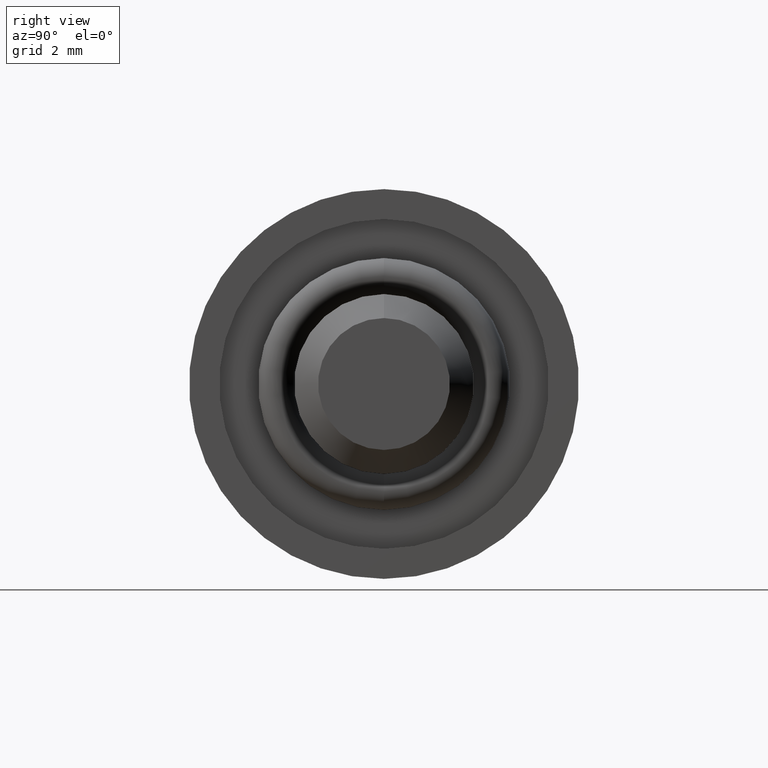
[diagram: clean part render]
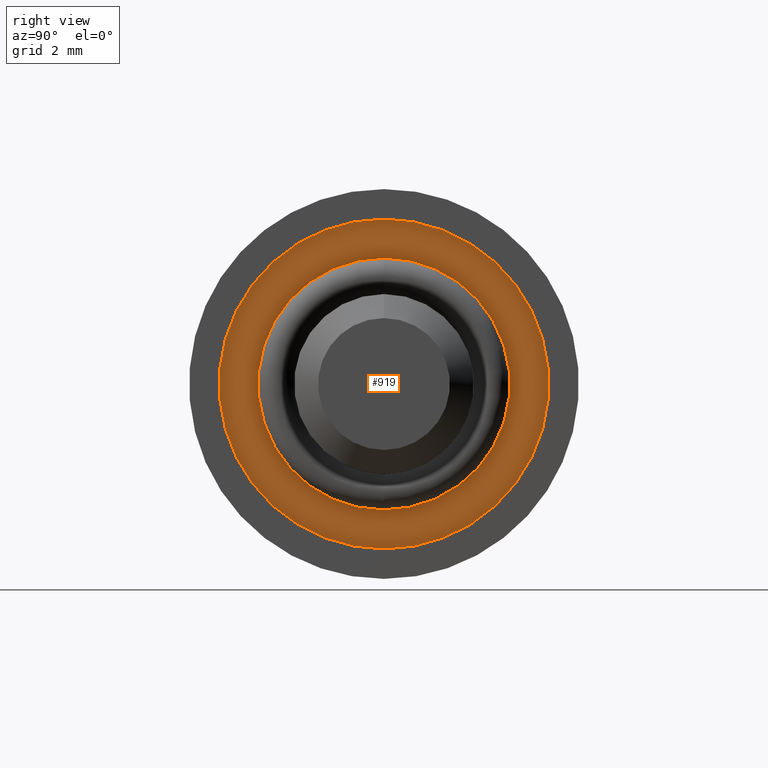
[diagram: same view with one face highlighted and labeled with its STEP entity id]
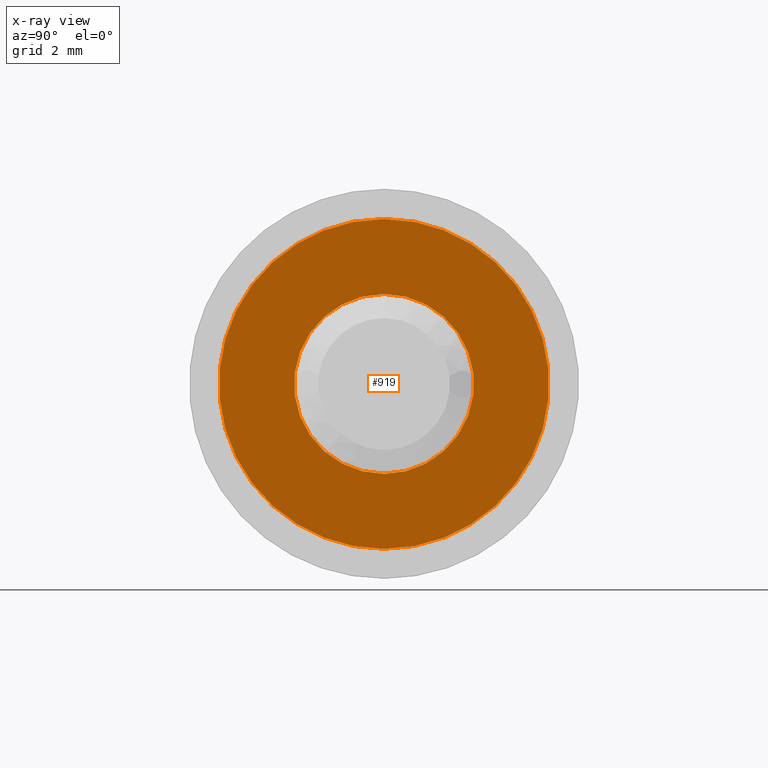
[diagram: x-ray of the same camera — body ghosted, the highlighted face saturated]
A machine part, right view. The second image highlights one B-rep face of the part: STEP entity #919.
The next image is the same camera in x-ray: the body ghosted, the highlighted face saturated — about 0% of this face is hidden behind the body in this view.
In plain terms, the highlighted planar face has unit normal (1, 0, 0).
Its self-contained STEP definition (entity closure, byte-faithful):
#61 = VERTEX_POINT ( 'NONE', #184 ) ;
#65 = DIRECTION ( 'NONE',  ( 0.0000000000000000000, 0.0000000000000000000, -1.000000000000000000 ) ) ;
#120 = ORIENTED_EDGE ( 'NONE', *, *, #430, .F. ) ;
#134 = DIRECTION ( 'NONE',  ( 1.000000000000000000, 0.0000000000000000000, 0.0000000000000000000 ) ) ;
#157 = CARTESIAN_POINT ( 'NONE',  ( -0.2999999999999999900, 1.836970198721030200E-016, -1.500000000000000200 ) ) ;
#183 = EDGE_CURVE ( 'NONE', #837, #61, #620, .T. ) ;
#184 = CARTESIAN_POINT ( 'NONE',  ( -0.2999999999999999900, 0.0000000000000000000, 1.500000000000000200 ) ) ;
#304 = FACE_OUTER_BOUND ( 'NONE', #700, .T. ) ;
#320 = CARTESIAN_POINT ( 'NONE',  ( -0.2999999999999999900, 3.367778697655221000E-016, 2.750000000000000000 ) ) ;
#336 = FACE_BOUND ( 'NONE', #1167, .T. ) ;
#343 = DIRECTION ( 'NONE',  ( 0.0000000000000000000, 0.0000000000000000000, -1.000000000000000000 ) ) ;
#345 = PLANE ( 'NONE',  #1080 ) ;
#354 = CIRCLE ( 'NONE', #692, 2.750000000000000000 ) ;
#417 = CARTESIAN_POINT ( 'NONE',  ( -0.2999999999999999900, 0.0000000000000000000, 0.0000000000000000000 ) ) ;
#422 = CARTESIAN_POINT ( 'NONE',  ( -0.2999999999999999900, 0.0000000000000000000, 0.0000000000000000000 ) ) ;
#430 = EDGE_CURVE ( 'NONE', #61, #837, #809, .T. ) ;
#439 = CARTESIAN_POINT ( 'NONE',  ( -0.2999999999999999900, 0.0000000000000000000, -2.750000000000000000 ) ) ;
#484 = AXIS2_PLACEMENT_3D ( 'NONE', #814, #1118, #726 ) ;
#499 = DIRECTION ( 'NONE',  ( 1.000000000000000000, 0.0000000000000000000, 0.0000000000000000000 ) ) ;
#620 = CIRCLE ( 'NONE', #1127, 1.500000000000000200 ) ;
#633 = VERTEX_POINT ( 'NONE', #439 ) ;
#648 = CIRCLE ( 'NONE', #484, 2.750000000000000000 ) ;
#692 = AXIS2_PLACEMENT_3D ( 'NONE', #417, #499, #343 ) ;
#700 = EDGE_LOOP ( 'NONE', ( #805, #1193 ) ) ;
#726 = DIRECTION ( 'NONE',  ( 0.0000000000000000000, 0.0000000000000000000, -1.000000000000000000 ) ) ;
#805 = ORIENTED_EDGE ( 'NONE', *, *, #1086, .T. ) ;
#809 = CIRCLE ( 'NONE', #902, 1.500000000000000200 ) ;
#814 = CARTESIAN_POINT ( 'NONE',  ( -0.2999999999999999900, 0.0000000000000000000, 0.0000000000000000000 ) ) ;
#837 = VERTEX_POINT ( 'NONE', #157 ) ;
#902 = AXIS2_PLACEMENT_3D ( 'NONE', #1005, #1157, #1140 ) ;
#919 = ADVANCED_FACE ( 'NONE', ( #304, #336 ), #345, .T. ) ;
#953 = DIRECTION ( 'NONE',  ( 1.000000000000000000, 0.0000000000000000000, 0.0000000000000000000 ) ) ;
#1005 = CARTESIAN_POINT ( 'NONE',  ( -0.2999999999999999900, 0.0000000000000000000, 0.0000000000000000000 ) ) ;
#1037 = CARTESIAN_POINT ( 'NONE',  ( -0.2999999999999999900, 0.0000000000000000000, 0.0000000000000000000 ) ) ;
#1080 = AXIS2_PLACEMENT_3D ( 'NONE', #422, #134, #65 ) ;
#1086 = EDGE_CURVE ( 'NONE', #633, #1153, #648, .T. ) ;
#1118 = DIRECTION ( 'NONE',  ( 1.000000000000000000, 0.0000000000000000000, 0.0000000000000000000 ) ) ;
#1127 = AXIS2_PLACEMENT_3D ( 'NONE', #1037, #953, #1137 ) ;
#1137 = DIRECTION ( 'NONE',  ( 0.0000000000000000000, 0.0000000000000000000, -1.000000000000000000 ) ) ;
#1140 = DIRECTION ( 'NONE',  ( 0.0000000000000000000, 0.0000000000000000000, -1.000000000000000000 ) ) ;
#1150 = EDGE_CURVE ( 'NONE', #1153, #633, #354, .T. ) ;
#1153 = VERTEX_POINT ( 'NONE', #320 ) ;
#1157 = DIRECTION ( 'NONE',  ( 1.000000000000000000, 0.0000000000000000000, 0.0000000000000000000 ) ) ;
#1161 = ORIENTED_EDGE ( 'NONE', *, *, #183, .F. ) ;
#1167 = EDGE_LOOP ( 'NONE', ( #120, #1161 ) ) ;
#1193 = ORIENTED_EDGE ( 'NONE', *, *, #1150, .T. ) ;